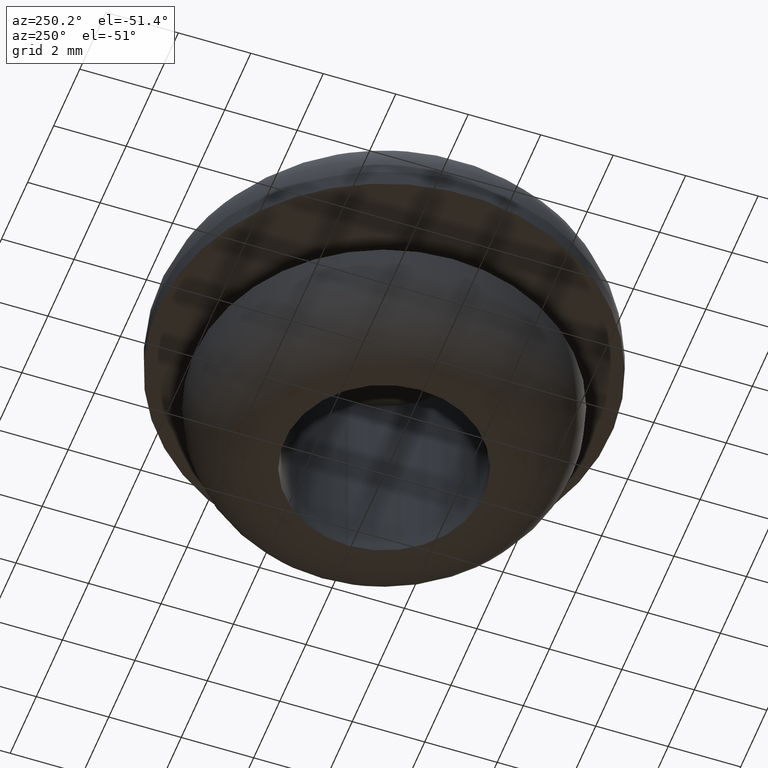
[diagram: clean part render]
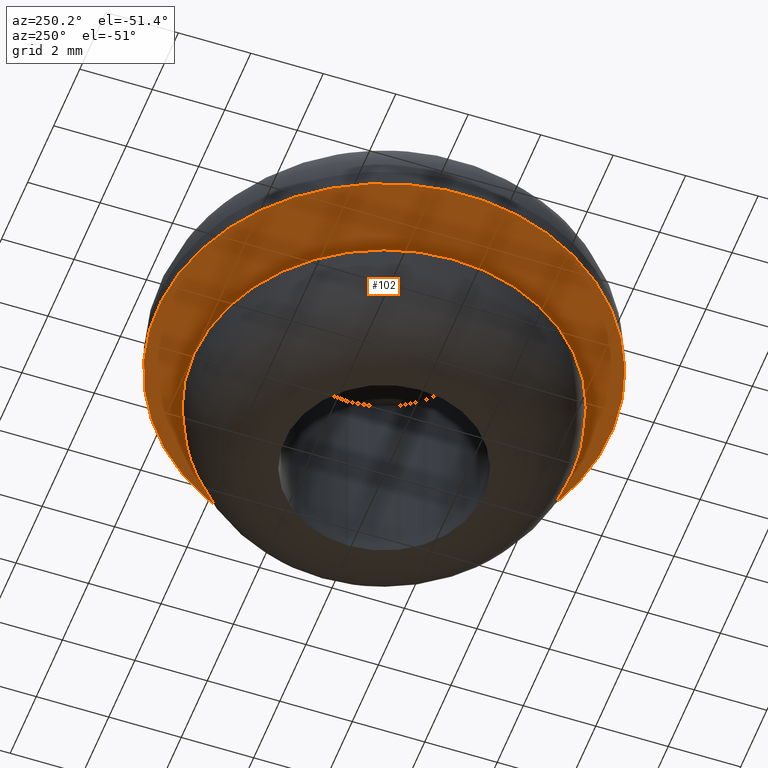
[diagram: same view with one face highlighted and labeled with its STEP entity id]
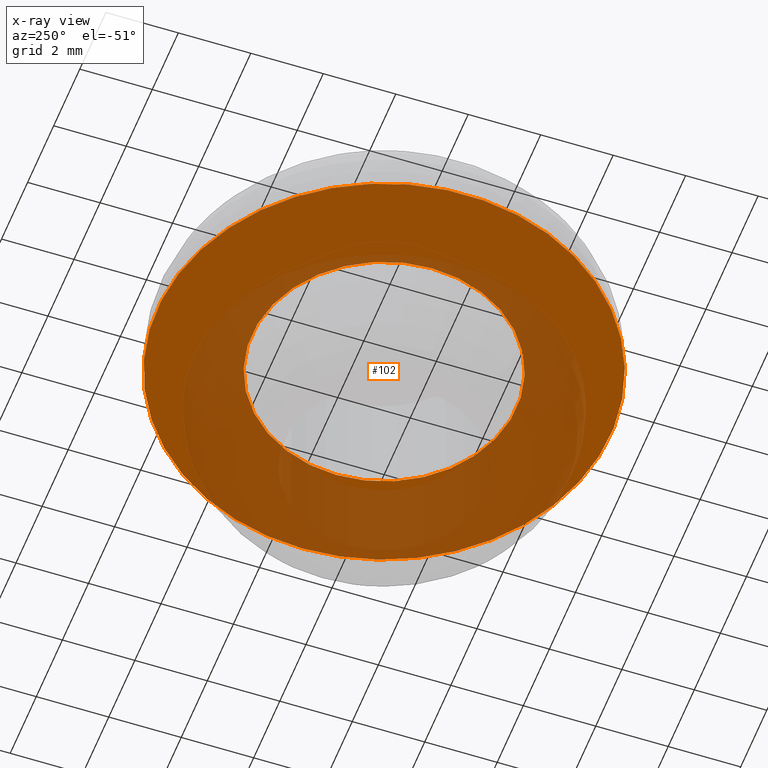
[diagram: x-ray of the same camera — body ghosted, the highlighted face saturated]
A machine part, auxiliary view. The second image highlights one B-rep face of the part: STEP entity #102.
The next image is the same camera in x-ray: the body ghosted, the highlighted face saturated — about 52% of this face is hidden behind the body in this view.
In plain terms, the highlighted planar face has unit normal (0, 0, -1).
Its self-contained STEP definition (entity closure, byte-faithful):
#21=FACE_BOUND('',#47,.T.);
#33=FACE_OUTER_BOUND('',#46,.T.);
#46=EDGE_LOOP('',(#86));
#47=EDGE_LOOP('',(#87));
#53=CIRCLE('',#110,3.65);
#57=CIRCLE('',#116,6.25);
#61=VERTEX_POINT('',#165);
#65=VERTEX_POINT('',#175);
#69=EDGE_CURVE('',#61,#61,#53,.T.);
#73=EDGE_CURVE('',#65,#65,#57,.T.);
#86=ORIENTED_EDGE('',*,*,#73,.F.);
#87=ORIENTED_EDGE('',*,*,#69,.T.);
#94=PLANE('',#121);
#102=ADVANCED_FACE('',(#33,#21),#94,.T.);
#110=AXIS2_PLACEMENT_3D('',#166,#132,#133);
#116=AXIS2_PLACEMENT_3D('',#176,#144,#145);
#121=AXIS2_PLACEMENT_3D('',#183,#154,#155);
#132=DIRECTION('center_axis',(0.,0.,1.));
#133=DIRECTION('ref_axis',(-1.,0.,0.));
#144=DIRECTION('center_axis',(0.,0.,1.));
#145=DIRECTION('ref_axis',(1.,0.,0.));
#154=DIRECTION('center_axis',(0.,0.,-1.));
#155=DIRECTION('ref_axis',(-1.,0.,0.));
#165=CARTESIAN_POINT('',(-3.65,0.,0.));
#166=CARTESIAN_POINT('Origin',(0.,0.,0.));
#175=CARTESIAN_POINT('',(6.25,0.,0.));
#176=CARTESIAN_POINT('Origin',(0.,0.,0.));
#183=CARTESIAN_POINT('Origin',(4.875,0.,0.));